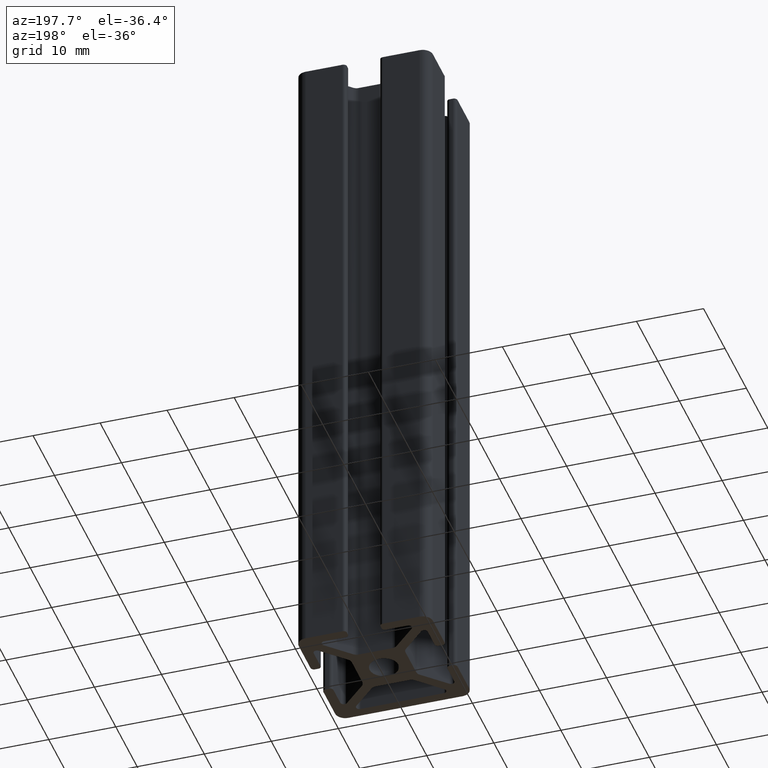
[diagram: clean part render]
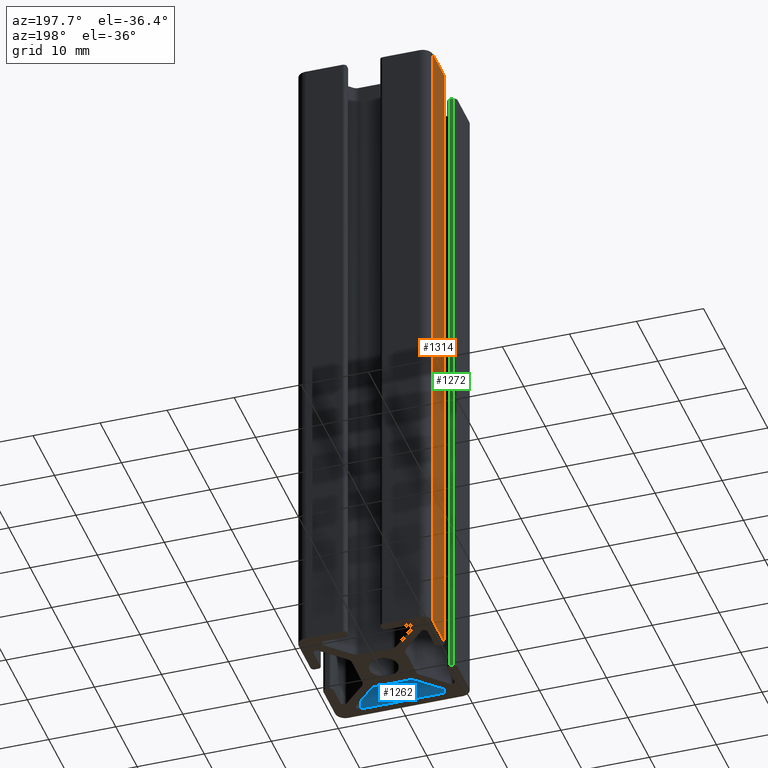
[diagram: same view with three faces highlighted in distinct colors, each labeled with its STEP entity id]
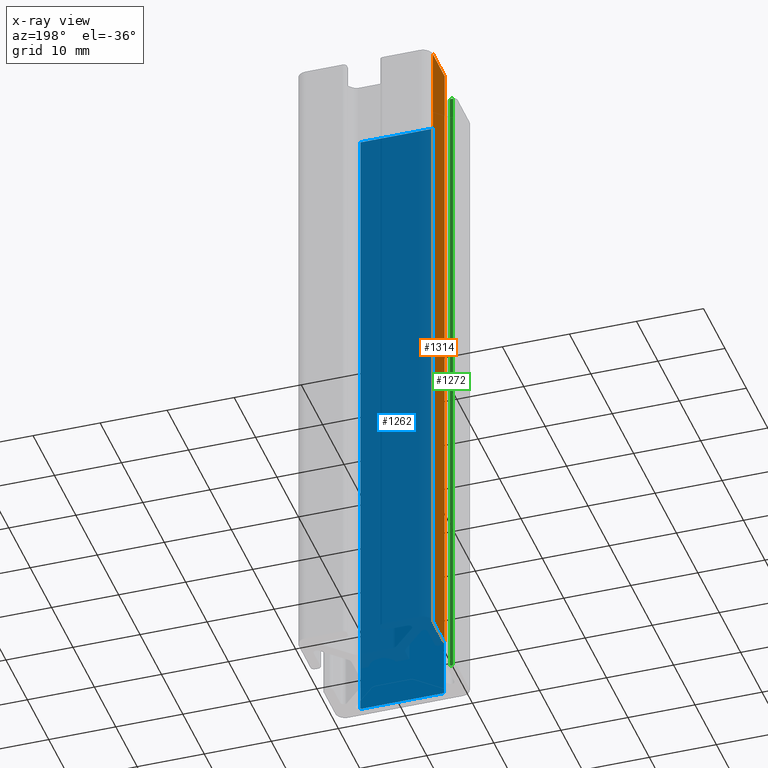
[diagram: x-ray of the same camera — body ghosted, the three highlighted faces saturated]
A machine part, auxiliary view with three faces highlighted in distinct colors.
The next image is the same camera in x-ray (body ghosted, the three faces saturated) — at least one of them is partly hidden behind the body in this view.
Their STEP definitions:

[orange] entity #1314 — the highlighted planar face has unit normal (-1, -0, 0).
#40=PLANE('',#1441);
#69=LINE('',#1925,#197);
#155=LINE('',#2193,#283);
#156=LINE('',#2195,#284);
#157=LINE('',#2196,#285);
#197=VECTOR('',#1528,100.);
#283=VECTOR('',#1796,5.50000000000001);
#284=VECTOR('',#1797,100.);
#285=VECTOR('',#1798,5.50000000000001);
#364=FACE_OUTER_BOUND('',#432,.T.);
#432=EDGE_LOOP('',(#1053,#1054,#1055,#1056));
#537=VERTEX_POINT('',#1922);
#538=VERTEX_POINT('',#1924);
#629=VERTEX_POINT('',#2192);
#630=VERTEX_POINT('',#2194);
#676=EDGE_CURVE('',#537,#538,#69,.T.);
#809=EDGE_CURVE('',#537,#629,#155,.T.);
#810=EDGE_CURVE('',#630,#629,#156,.T.);
#811=EDGE_CURVE('',#538,#630,#157,.T.);
#1053=ORIENTED_EDGE('',*,*,#676,.F.);
#1054=ORIENTED_EDGE('',*,*,#809,.T.);
#1055=ORIENTED_EDGE('',*,*,#810,.F.);
#1056=ORIENTED_EDGE('',*,*,#811,.F.);
#1314=ADVANCED_FACE('',(#364),#40,.T.);
#1441=AXIS2_PLACEMENT_3D('',#2191,#1794,#1795);
#1528=DIRECTION('',(0.,0.,-1.));
#1794=DIRECTION('center_axis',(-1.,-2.61228946970625E-16,0.));
#1795=DIRECTION('ref_axis',(1.77635683940025E-16,-1.,0.));
#1796=DIRECTION('',(-2.61228946970625E-16,1.,0.));
#1797=DIRECTION('',(0.,0.,1.));
#1798=DIRECTION('',(-2.61228946970625E-16,1.,0.));
#1922=CARTESIAN_POINT('',(-9.99999999999999,2.99999999999999,100.));
#1924=CARTESIAN_POINT('',(-9.99999999999999,2.99999999999999,0.));
#1925=CARTESIAN_POINT('',(-10.,3.,0.));
#2191=CARTESIAN_POINT('Origin',(-10.,8.5,0.));
#2192=CARTESIAN_POINT('',(-10.,8.5,100.));
#2193=CARTESIAN_POINT('',(-10.,4.25,100.));
#2194=CARTESIAN_POINT('',(-10.,8.5,0.));
#2195=CARTESIAN_POINT('',(-10.,8.5,0.));
#2196=CARTESIAN_POINT('',(-10.,4.25,0.));

[blue] entity #1262 — the highlighted planar face has unit normal (0, -1, 0).
#15=PLANE('',#1335);
#50=LINE('',#1872,#178);
#51=LINE('',#1875,#179);
#52=LINE('',#1877,#180);
#53=LINE('',#1878,#181);
#178=VECTOR('',#1477,100.);
#179=VECTOR('',#1480,12.4644660940673);
#180=VECTOR('',#1481,12.4644660940673);
#181=VECTOR('',#1482,100.);
#312=FACE_OUTER_BOUND('',#380,.T.);
#380=EDGE_LOOP('',(#845,#846,#847,#848));
#518=VERTEX_POINT('',#1866);
#520=VERTEX_POINT('',#1870);
#521=VERTEX_POINT('',#1874);
#522=VERTEX_POINT('',#1876);
#650=EDGE_CURVE('',#520,#518,#50,.T.);
#651=EDGE_CURVE('',#518,#521,#51,.T.);
#652=EDGE_CURVE('',#522,#520,#52,.T.);
#653=EDGE_CURVE('',#522,#521,#53,.T.);
#845=ORIENTED_EDGE('',*,*,#651,.F.);
#846=ORIENTED_EDGE('',*,*,#650,.F.);
#847=ORIENTED_EDGE('',*,*,#652,.F.);
#848=ORIENTED_EDGE('',*,*,#653,.T.);
#1262=ADVANCED_FACE('',(#312),#15,.F.);
#1335=AXIS2_PLACEMENT_3D('',#1873,#1478,#1479);
#1477=DIRECTION('',(0.,0.,1.));
#1478=DIRECTION('center_axis',(5.34426272050397E-16,-1.,0.));
#1479=DIRECTION('ref_axis',(1.,5.32907051820075E-16,0.));
#1480=DIRECTION('',(-1.,-5.34426272050397E-16,0.));
#1481=DIRECTION('',(1.,5.34426272050397E-16,0.));
#1482=DIRECTION('',(0.,0.,1.));
#1866=CARTESIAN_POINT('',(6.23223304703363,-8.49999999999998,100.));
#1870=CARTESIAN_POINT('',(6.23223304703363,-8.49999999999998,0.));
#1872=CARTESIAN_POINT('',(6.23223304703363,-8.49999999999998,0.));
#1873=CARTESIAN_POINT('Origin',(-6.23223304703363,-8.49999999999999,0.));
#1874=CARTESIAN_POINT('',(-6.23223304703363,-8.49999999999999,100.));
#1875=CARTESIAN_POINT('',(-3.11611652351681,-8.49999999999999,100.));
#1876=CARTESIAN_POINT('',(-6.23223304703363,-8.49999999999999,0.));
#1877=CARTESIAN_POINT('',(-3.11611652351681,-8.49999999999999,0.));
#1878=CARTESIAN_POINT('',(-6.23223304703363,-8.49999999999999,0.));

[green] entity #1272 — the highlighted planar face has unit normal (0, -1, 0).
#20=PLANE('',#1355);
#70=LINE('',#1932,#198);
#72=LINE('',#1938,#200);
#73=LINE('',#1940,#201);
#74=LINE('',#1941,#202);
#198=VECTOR('',#1535,100.);
#200=VECTOR('',#1541,0.500000000000003);
#201=VECTOR('',#1542,100.);
#202=VECTOR('',#1543,0.500000000000003);
#322=FACE_OUTER_BOUND('',#390,.T.);
#390=EDGE_LOOP('',(#885,#886,#887,#888));
#539=VERTEX_POINT('',#1928);
#541=VERTEX_POINT('',#1931);
#543=VERTEX_POINT('',#1937);
#544=VERTEX_POINT('',#1939);
#679=EDGE_CURVE('',#541,#539,#70,.T.);
#682=EDGE_CURVE('',#543,#539,#72,.T.);
#683=EDGE_CURVE('',#544,#543,#73,.T.);
#684=EDGE_CURVE('',#541,#544,#74,.T.);
#885=ORIENTED_EDGE('',*,*,#682,.F.);
#886=ORIENTED_EDGE('',*,*,#683,.F.);
#887=ORIENTED_EDGE('',*,*,#684,.F.);
#888=ORIENTED_EDGE('',*,*,#679,.T.);
#1272=ADVANCED_FACE('',(#322),#20,.F.);
#1355=AXIS2_PLACEMENT_3D('',#1936,#1539,#1540);
#1535=DIRECTION('',(0.,0.,1.));
#1539=DIRECTION('center_axis',(7.77156117237605E-15,-1.,0.));
#1540=DIRECTION('ref_axis',(1.,7.7715611723761E-15,0.));
#1541=DIRECTION('',(-1.,-7.77156117237605E-15,0.));
#1542=DIRECTION('',(0.,0.,1.));
#1543=DIRECTION('',(1.,7.77156117237605E-15,0.));
#1928=CARTESIAN_POINT('',(-9.49999999999999,-2.5,100.));
#1931=CARTESIAN_POINT('',(-9.49999999999999,-2.5,0.));
#1932=CARTESIAN_POINT('',(-9.49999999999999,-2.5,0.));
#1936=CARTESIAN_POINT('Origin',(-9.49999999999999,-2.5,0.));
#1937=CARTESIAN_POINT('',(-8.99999999999999,-2.5,100.));
#1938=CARTESIAN_POINT('',(-4.74999999999999,-2.49999999999996,100.));
#1939=CARTESIAN_POINT('',(-8.99999999999999,-2.5,0.));
#1940=CARTESIAN_POINT('',(-8.99999999999999,-2.5,0.));
#1941=CARTESIAN_POINT('',(-4.74999999999999,-2.49999999999996,0.));